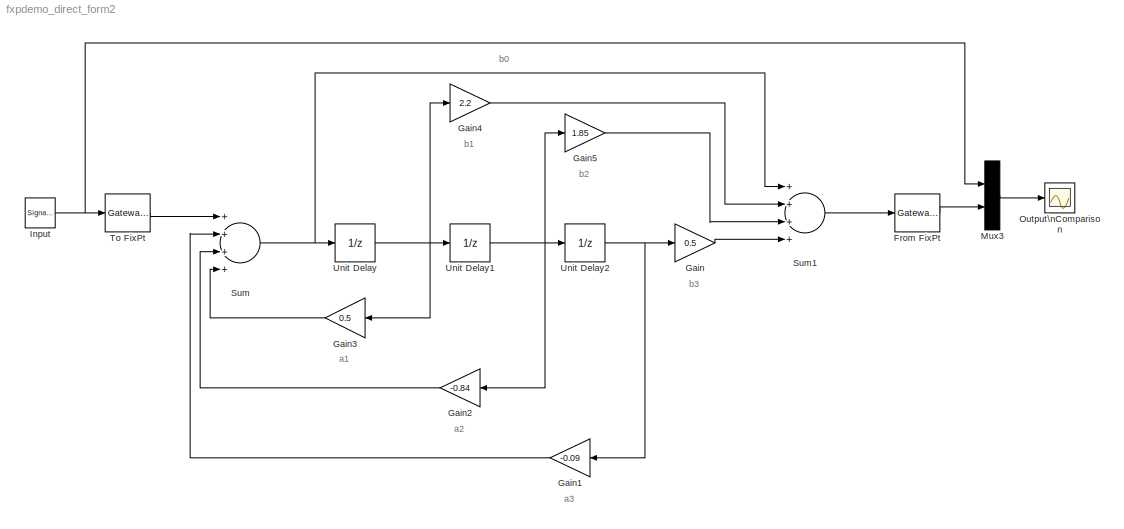
MODEL fxpdemo_direct_form2
KIND model
CONFIG AbsTol = auto
CONFIG FixedStep = 1
CONFIG MaxStep = auto
CONFIG MinStep = auto
CONFIG RelTol = 1e-3
CONFIG Solver = FixedStepDiscrete
CONFIG SolverMode = SingleTasking
CONFIG StartTime = 0.0
CONFIG StopTime = 200.0
BLOCK [Reference] From FixPt  REF=fixpt_lib_4/Data Type/Gateway Out  (lib defined in mdl_ef9dacb0d1df)
  DoSatur = off
  OutBuiltInType = double
  OutRealWorld = Real World Value
  Ports = [1, 1]
  RndMeth = Floor
  SourceBlock = fixpt_lib_4/Data Type/Gateway Out
  SourceType = Fixed-Point Gateway Out
BLOCK [Gain] Gain
  Gain = 0.5
  OutDataTypeMode = Specify via dialog
  OutScaling = 2^-10
  ParameterDataType = sfix( 16 )
  ParameterDataTypeMode = Specify via dialog
  ParameterScaling = 2^-10
  ParameterScalingMode = Best Precision: Column-wise
  SaturateOnIntegerOverflow = off
  ShowAdditionalParam = on
BLOCK [Gain] Gain1
  Gain = -0.09
  OutDataTypeMode = Specify via dialog
  OutScaling = 2^-10
  ParameterDataType = sfix( 16 )
  ParameterDataTypeMode = Specify via dialog
  ParameterScaling = 2^-10
  ParameterScalingMode = Best Precision: Column-wise
  SaturateOnIntegerOverflow = off
  ShowAdditionalParam = on
BLOCK [Gain] Gain2
  Gain = -0.84
  OutDataTypeMode = Specify via dialog
  OutScaling = 2^-10
  ParameterDataType = sfix( 16 )
  ParameterDataTypeMode = Specify via dialog
  ParameterScaling = 2^-10
  ParameterScalingMode = Best Precision: Column-wise
  SaturateOnIntegerOverflow = off
  ShowAdditionalParam = on
BLOCK [Gain] Gain3
  Gain = 0.5
  OutDataTypeMode = Specify via dialog
  OutScaling = 2^-10
  ParameterDataType = sfix( 16 )
  ParameterDataTypeMode = Specify via dialog
  ParameterScaling = 2^-10
  ParameterScalingMode = Best Precision: Column-wise
  SaturateOnIntegerOverflow = off
  ShowAdditionalParam = on
BLOCK [Gain] Gain4
  Gain = 2.2
  OutDataTypeMode = Specify via dialog
  OutScaling = 2^-10
  ParameterDataType = sfix( 16 )
  ParameterDataTypeMode = Specify via dialog
  ParameterScaling = 2^-10
  ParameterScalingMode = Best Precision: Column-wise
  SaturateOnIntegerOverflow = off
  ShowAdditionalParam = on
BLOCK [Gain] Gain5
  Gain = 1.85
  OutDataTypeMode = Specify via dialog
  OutScaling = 2^-10
  ParameterDataType = sfix( 16 )
  ParameterDataTypeMode = Specify via dialog
  ParameterScaling = 2^-10
  ParameterScalingMode = Best Precision: Column-wise
  SaturateOnIntegerOverflow = off
  ShowAdditionalParam = on
BLOCK [SignalGenerator] Input
  Frequency = 0.005
  WaveForm = square
BLOCK [Mux] Mux3
  DisplayOption = bar
  Inputs = 2
  Ports = [2, 1]
BLOCK [Scope] Output\nComparison
  DataFormat = StructureWithTime
  NumInputPorts = 1
  Ports = [1]
  SaveName = OutputComparison
  SaveToWorkspace = on
  TickLabels = on
  TimeRange = 200
  YMax = 10
  YMin = -8
BLOCK [Sum] Sum
  InputSameDT = off
  Inputs = ++++
  OutDataTypeMode = Specify via dialog
  OutScaling = 2^-10
  Ports = [4, 1]
  SaturateOnIntegerOverflow = off
  ShowAdditionalParam = on
BLOCK [Sum] Sum1
  InputSameDT = off
  Inputs = ++++
  OutDataTypeMode = Specify via dialog
  OutScaling = 2^-10
  Ports = [4, 1]
  SaturateOnIntegerOverflow = off
  ShowAdditionalParam = on
BLOCK [Reference] To FixPt  REF=fixpt_lib_4/Data Type/Gateway In  (lib defined in mdl_ef9dacb0d1df)
  DoSatur = off
  InRealWorld = Real World Value
  LockScale = off
  OutDataType = sfix(16)
  OutScaling = 2^-10
  OutputDataTypeScalingMode = Specify via dialog
  Ports = [1, 1]
  RndMeth = Floor
  SourceBlock = fixpt_lib_4/Data Type/Gateway In
  SourceType = Fixed-Point Gateway In
BLOCK [UnitDelay] Unit Delay
  SampleTime = 1.0
  X0 = 0.0
BLOCK [UnitDelay] Unit Delay1
  SampleTime = 1.0
  X0 = 0.0
BLOCK [UnitDelay] Unit Delay2
  SampleTime = 1.0
  X0 = 0.0
ANNOTATION (root): a1
ANNOTATION (root): a2
ANNOTATION (root): a3
ANNOTATION (root): b0
ANNOTATION (root): b1
ANNOTATION (root): b2
ANNOTATION (root): b3
LINE From FixPt:1 -> Mux3:2
LINE Gain1:1 -> Sum:2
LINE Gain2:1 -> Sum:3
LINE Gain3:1 -> Sum:4
LINE Gain4:1 -> Sum1:2
LINE Gain5:1 -> Sum1:3
LINE Gain:1 -> Sum1:4
NET Input:1 -> Mux3:1, To FixPt:1
LINE Mux3:1 -> Output\nComparison:1
LINE Sum1:1 -> From FixPt:1
NET Sum:1 -> Sum1:1, Unit Delay:1
LINE To FixPt:1 -> Sum:1
NET Unit Delay1:1 -> Gain2:1, Gain5:1, Unit Delay2:1
NET Unit Delay2:1 -> Gain1:1, Gain:1
NET Unit Delay:1 -> Gain3:1, Gain4:1, Unit Delay1:1
note: NET lines group one-source signal fan-out (src -> all destinations, sorted); 1:1 wires keep LINE
